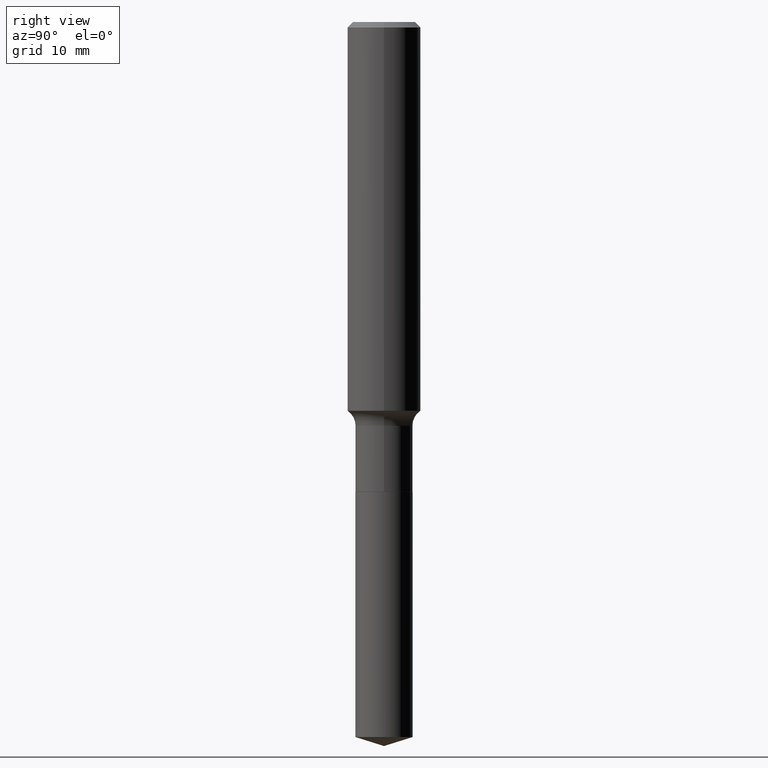
[diagram: clean part render]
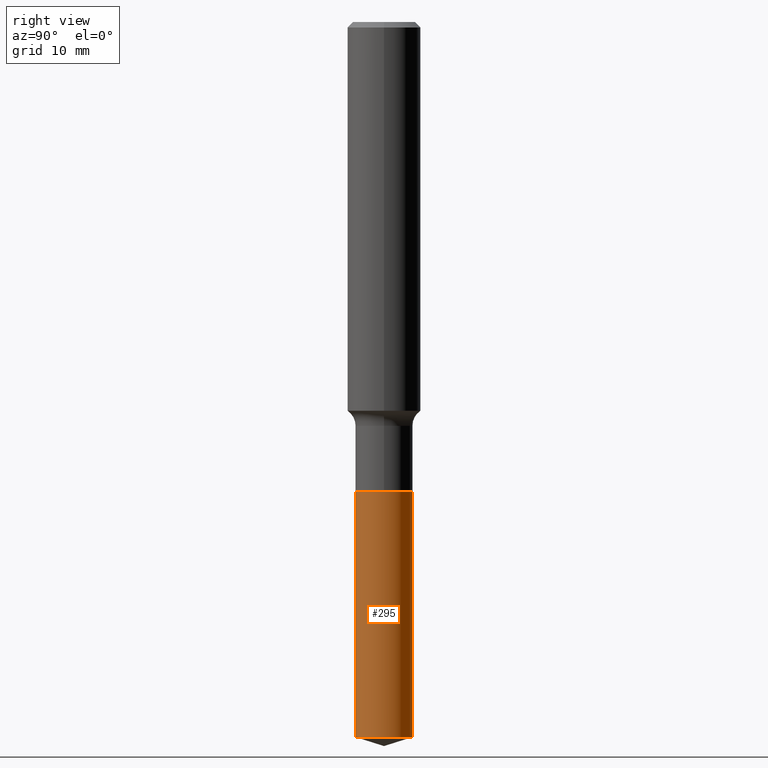
[diagram: same view with one face highlighted and labeled with its STEP entity id]
A machine part, right view. The second image highlights one B-rep face of the part: STEP entity #295.
In plain terms, the highlighted cylindrical surface (edge-blend (fillet) strip) has radius 3.1255 mm, axis along (-0, 0, 1).
Its self-contained STEP definition (entity closure, byte-faithful):
#31 = DIRECTION ( 'NONE',  ( -2.445762720344131298E-29, 3.491060437038909906E-15, 1.000000000000000000 ) ) ;
#37 = CARTESIAN_POINT ( 'NONE',  ( 7.511328664010520263E-29, -1.072330095178513026E-14, -3.071402484028441737 ) ) ;
#51 = CYLINDRICAL_SURFACE ( 'NONE', #366, 0.1230500000000000066 ) ;
#55 = AXIS2_PLACEMENT_3D ( 'NONE', #188, #31, #336 ) ;
#56 = AXIS2_PLACEMENT_3D ( 'NONE', #37, #360, #425 ) ;
#60 = ORIENTED_EDGE ( 'NONE', *, *, #99, .F. ) ;
#76 = CARTESIAN_POINT ( 'NONE',  ( 8.743228363528783660E-16, 0.1230499999999929567, -2.017700000000000937 ) ) ;
#77 = ORIENTED_EDGE ( 'NONE', *, *, #410, .T. ) ;
#83 = ORIENTED_EDGE ( 'NONE', *, *, #108, .T. ) ;
#94 = CARTESIAN_POINT ( 'NONE',  ( -8.592535574892198803E-16, -0.1230500000000107202, -3.071402484028441293 ) ) ;
#97 = VECTOR ( 'NONE', #297, 39.37007874015748143 ) ;
#99 = EDGE_CURVE ( 'NONE', #131, #161, #320, .T. ) ;
#108 = EDGE_CURVE ( 'NONE', #424, #161, #478, .T. ) ;
#121 = CIRCLE ( 'NONE', #56, 0.1230500000000000066 ) ;
#131 = VERTEX_POINT ( 'NONE', #482 ) ;
#155 = LINE ( 'NONE', #308, #203 ) ;
#161 = VERTEX_POINT ( 'NONE', #76 ) ;
#168 = DIRECTION ( 'NONE',  ( -2.445762720344131298E-29, 3.491060437038909906E-15, 1.000000000000000000 ) ) ;
#188 = CARTESIAN_POINT ( 'NONE',  ( 4.934222410239750967E-29, -7.044761897383814758E-15, -2.017700000000000049 ) ) ;
#203 = VECTOR ( 'NONE', #458, 39.37007874015748143 ) ;
#207 = FACE_OUTER_BOUND ( 'NONE', #421, .T. ) ;
#229 = EDGE_CURVE ( 'NONE', #284, #131, #155, .T. ) ;
#267 = CARTESIAN_POINT ( 'NONE',  ( 8.743228363528525308E-16, 0.1230499999999929567, -2.017700000000000937 ) ) ;
#284 = VERTEX_POINT ( 'NONE', #94 ) ;
#289 = DIRECTION ( 'NONE',  ( -6.982962677686266711E-15, -1.000000000000000000, 4.440224288767595162E-15 ) ) ;
#295 = ADVANCED_FACE ( 'NONE', ( #207 ), #51, .T. ) ;
#297 = DIRECTION ( 'NONE',  ( -2.445762720344131298E-29, 3.491060437038910301E-15, 1.000000000000000000 ) ) ;
#308 = CARTESIAN_POINT ( 'NONE',  ( -8.592535574892457155E-16, -0.1230500000000070565, -2.017699999999999605 ) ) ;
#315 = CARTESIAN_POINT ( 'NONE',  ( 8.743228363528783660E-16, 0.1230499999999892652, -3.071402484028442181 ) ) ;
#320 = CIRCLE ( 'NONE', #55, 0.1230500000000000066 ) ;
#336 = DIRECTION ( 'NONE',  ( -6.982962677686266711E-15, -1.000000000000000000, 4.440224288767595162E-15 ) ) ;
#360 = DIRECTION ( 'NONE',  ( -2.445762720344131298E-29, 3.491060437038909906E-15, 1.000000000000000000 ) ) ;
#366 = AXIS2_PLACEMENT_3D ( 'NONE', #423, #168, #289 ) ;
#395 = ORIENTED_EDGE ( 'NONE', *, *, #229, .F. ) ;
#410 = EDGE_CURVE ( 'NONE', #284, #424, #121, .T. ) ;
#421 = EDGE_LOOP ( 'NONE', ( #77, #83, #60, #395 ) ) ;
#423 = CARTESIAN_POINT ( 'NONE',  ( 4.934222410239750967E-29, -7.044761897383814758E-15, -2.017700000000000049 ) ) ;
#424 = VERTEX_POINT ( 'NONE', #315 ) ;
#425 = DIRECTION ( 'NONE',  ( -6.982962677686266711E-15, -1.000000000000000000, 4.440224288767595162E-15 ) ) ;
#458 = DIRECTION ( 'NONE',  ( -2.445762720344131298E-29, 3.491060437038910301E-15, 1.000000000000000000 ) ) ;
#478 = LINE ( 'NONE', #267, #97 ) ;
#482 = CARTESIAN_POINT ( 'NONE',  ( -8.592535574892457155E-16, -0.1230500000000070565, -2.017699999999999605 ) ) ;